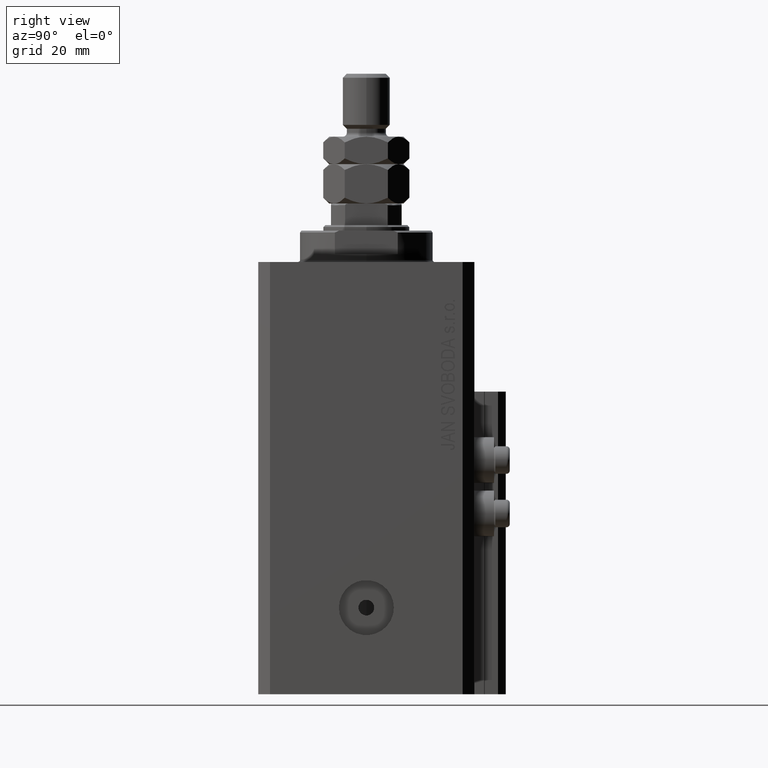
[diagram: clean part render]
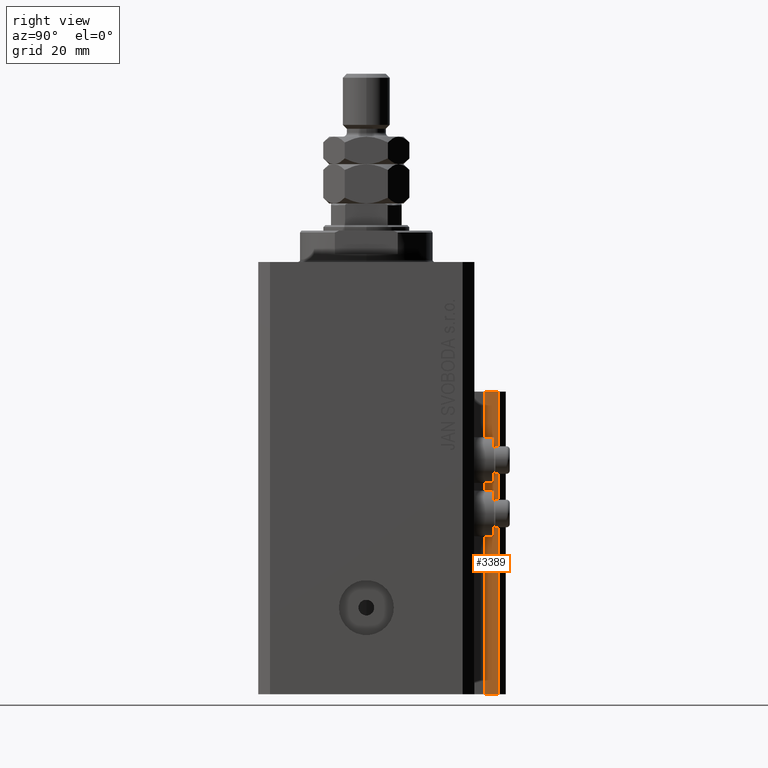
[diagram: same view with one face highlighted and labeled with its STEP entity id]
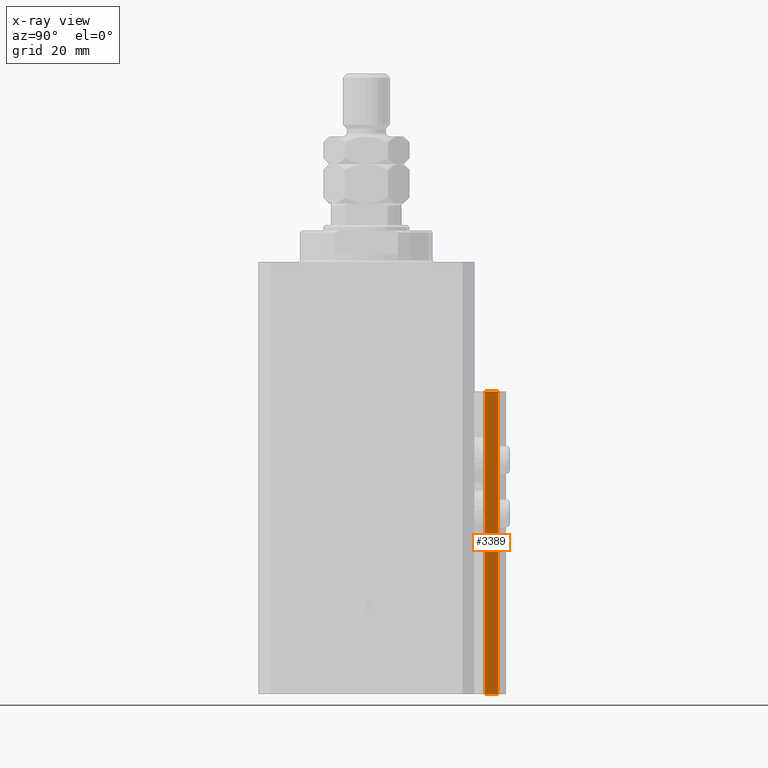
[diagram: x-ray of the same camera — body ghosted, the highlighted face saturated]
A machine part, right view. The second image highlights one B-rep face of the part: STEP entity #3389.
The next image is the same camera in x-ray: the body ghosted, the highlighted face saturated — about 0% of this face is hidden behind the body in this view.
In plain terms, the highlighted planar face has unit normal (1, 0, 0).
Its self-contained STEP definition (entity closure, byte-faithful):
#1542 = LINE ( 'NONE', #12885, #40965 ) ;
#2822 = EDGE_CURVE ( 'NONE', #21230, #2921, #30385, .T. ) ;
#2921 = VERTEX_POINT ( 'NONE', #13078 ) ;
#3375 = PLANE ( 'NONE',  #13436 ) ;
#3389 = ADVANCED_FACE ( 'NONE', ( #44827 ), #3375, .T. ) ;
#3512 = DIRECTION ( 'NONE',  ( 0.000000000000000000, 0.000000000000000000, 1.000000000000000000 ) ) ;
#3760 = VECTOR ( 'NONE', #3512, 1000.000000000000000 ) ;
#5547 = CARTESIAN_POINT ( 'NONE',  ( 12.00000000000000178, 30.20000000000002061, -33.00000000000000000 ) ) ;
#7913 = DIRECTION ( 'NONE',  ( -5.256737805990334897E-16, 1.000000000000000000, 0.000000000000000000 ) ) ;
#10420 = LINE ( 'NONE', #40800, #3760 ) ;
#11004 = DIRECTION ( 'NONE',  ( -5.256737805990335883E-16, 1.000000000000000000, 0.000000000000000000 ) ) ;
#12885 = CARTESIAN_POINT ( 'NONE',  ( 12.00000000000000178, 30.20000000000002061, -110.0000000000000000 ) ) ;
#13078 = CARTESIAN_POINT ( 'NONE',  ( 12.00000000000000000, 33.50000000000001421, -33.00000000000000000 ) ) ;
#13362 = ORIENTED_EDGE ( 'NONE', *, *, #2822, .F. ) ;
#13436 = AXIS2_PLACEMENT_3D ( 'NONE', #48530, #29789, #11004 ) ;
#14329 = VERTEX_POINT ( 'NONE', #19588 ) ;
#14736 = VECTOR ( 'NONE', #37741, 1000.000000000000000 ) ;
#15401 = EDGE_CURVE ( 'NONE', #14329, #2921, #10420, .T. ) ;
#19588 = CARTESIAN_POINT ( 'NONE',  ( 12.00000000000000000, 33.50000000000001421, -110.0000000000000000 ) ) ;
#19986 = ORIENTED_EDGE ( 'NONE', *, *, #21445, .F. ) ;
#20259 = VECTOR ( 'NONE', #7913, 1000.000000000000000 ) ;
#20550 = DIRECTION ( 'NONE',  ( 0.000000000000000000, 0.000000000000000000, 1.000000000000000000 ) ) ;
#21230 = VERTEX_POINT ( 'NONE', #5547 ) ;
#21445 = EDGE_CURVE ( 'NONE', #26361, #21230, #1542, .T. ) ;
#26361 = VERTEX_POINT ( 'NONE', #46486 ) ;
#29789 = DIRECTION ( 'NONE',  ( 1.000000000000000000, 5.256737805990335883E-16, -0.000000000000000000 ) ) ;
#30385 = LINE ( 'NONE', #41738, #20259 ) ;
#33800 = CARTESIAN_POINT ( 'NONE',  ( 12.00000000000000178, 30.20000000000002061, -110.0000000000000000 ) ) ;
#35031 = EDGE_CURVE ( 'NONE', #26361, #14329, #38709, .T. ) ;
#37096 = EDGE_LOOP ( 'NONE', ( #13362, #19986, #44329, #43255 ) ) ;
#37741 = DIRECTION ( 'NONE',  ( -5.256737805990334897E-16, 1.000000000000000000, 0.000000000000000000 ) ) ;
#38709 = LINE ( 'NONE', #33800, #14736 ) ;
#40800 = CARTESIAN_POINT ( 'NONE',  ( 12.00000000000000000, 33.50000000000001421, -110.0000000000000000 ) ) ;
#40965 = VECTOR ( 'NONE', #20550, 1000.000000000000000 ) ;
#41738 = CARTESIAN_POINT ( 'NONE',  ( 12.00000000000000178, 30.20000000000002061, -33.00000000000000000 ) ) ;
#43255 = ORIENTED_EDGE ( 'NONE', *, *, #15401, .T. ) ;
#44329 = ORIENTED_EDGE ( 'NONE', *, *, #35031, .T. ) ;
#44827 = FACE_OUTER_BOUND ( 'NONE', #37096, .T. ) ;
#46486 = CARTESIAN_POINT ( 'NONE',  ( 12.00000000000000178, 30.20000000000002061, -110.0000000000000000 ) ) ;
#48530 = CARTESIAN_POINT ( 'NONE',  ( 12.00000000000000178, 30.20000000000002061, -110.0000000000000000 ) ) ;